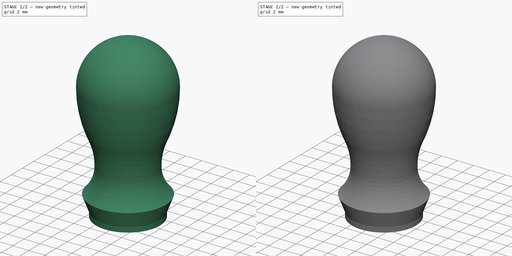
[diagram: build sequence overview — one tinted view per stage of 2, left to right]
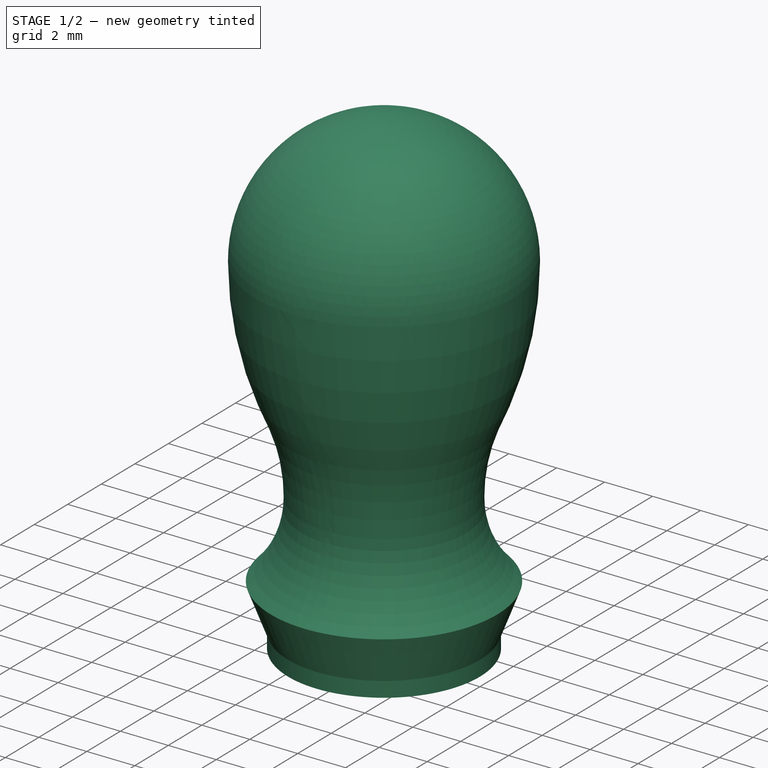
[diagram: stage 1 of 2 — iso view after this stage's code; geometry added in this stage tinted green]
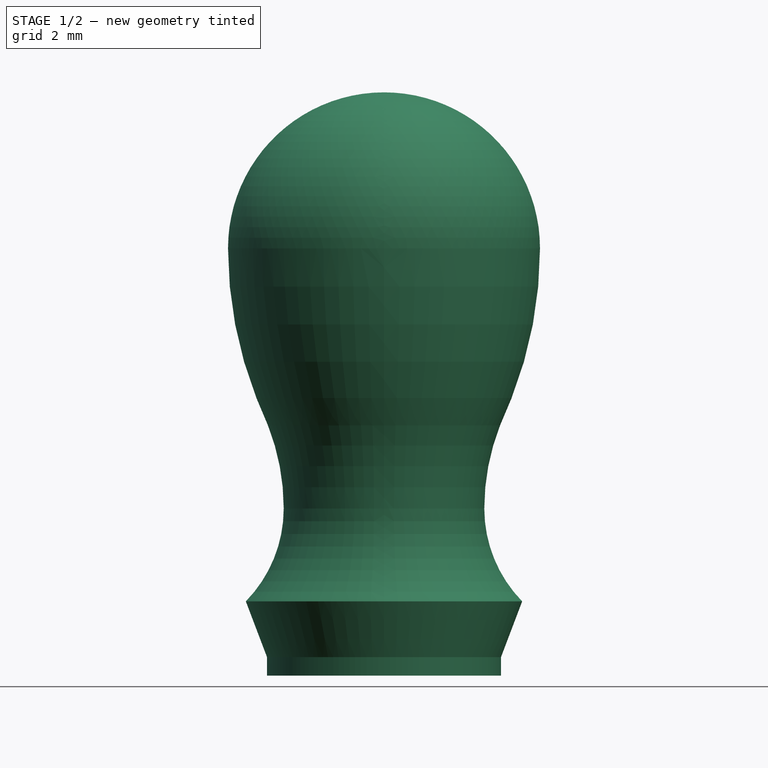
[diagram: stage 1 of 2 — front view after this stage's code; geometry added in this stage tinted green]
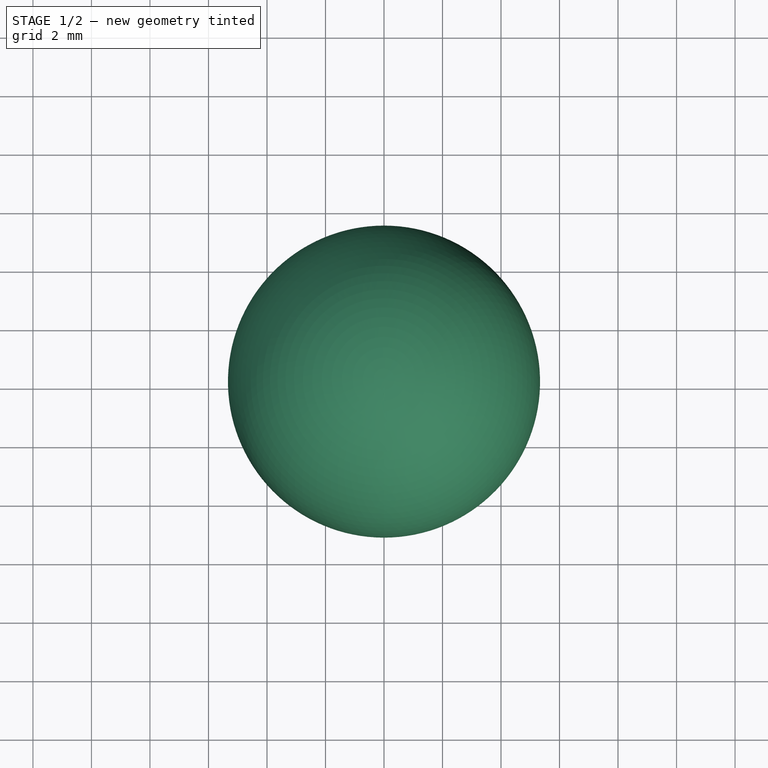
[diagram: stage 1 of 2 — top view after this stage's code; geometry added in this stage tinted green]
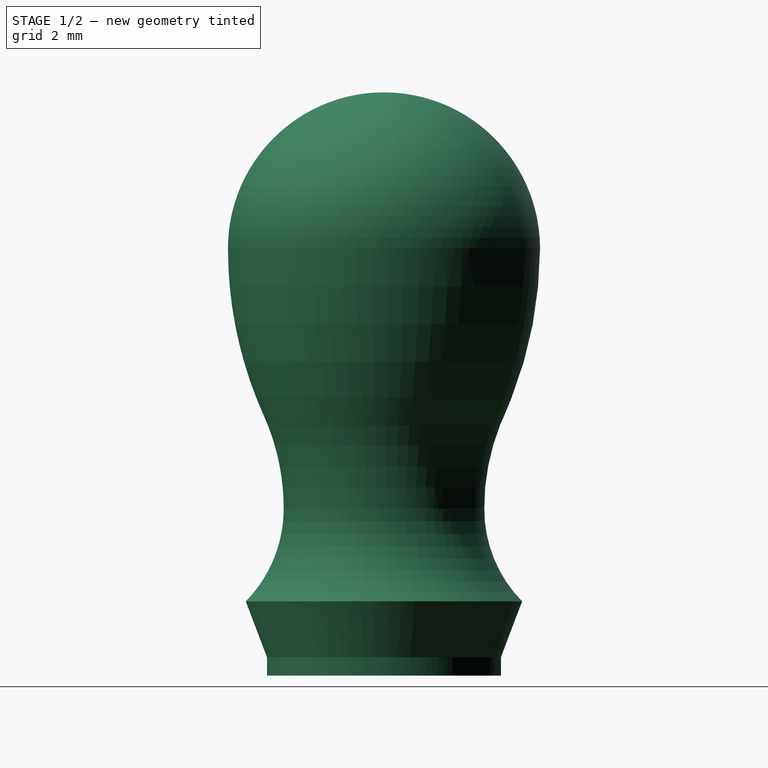
[diagram: stage 1 of 2 — right view after this stage's code; geometry added in this stage tinted green]
FCSTD DOCUMENT  (FreeCAD 0.20R)
Label: J-38 shorting knob with tap hole
License: All rights reserved
LicenseURL: http://en.wikipedia.org/wiki/All_rights_reserved
objects: Sketcher::SketchObject×2, PartDesign::Revolution×1, PartDesign::Pocket×1, PartDesign::Fillet×1, PartDesign::Body×1
note: 9 computed .brp shape members not serialized (recipe doc carries the construction recipe); baked Part::Feature solids carry a one-line shape summary decoded from their .brp

FEATURE [Sketcher::SketchObject] Sketch
  FullyConstrained = true
  MapMode = 5
  Placement = pos=(0,0,0) rot=(0.57735,0.57735,0.57735;2.0944rad)
  Support = -> [YZ_Plane]
  expr: Constraints[11] = 0.1 * 25.4
  expr: Constraints[15] = 0.42 * 25.4
  expr: Constraints[16] = 0.575 * 25.4
  expr: Constraints[18] = 0.225 * 25.4
  expr: Constraints[19] = 0.27 * 25.4
  expr: Constraints[21] = 0.372 * 25.4
  expr: Constraints[2] = 25.4 * 0.315
  expr: Constraints[6] = 0.025 * 25.4
  sketch-geometry (19):
    g0: LineSegment StartX=-4.0005 StartY=0 StartZ=0 EndX=-4.0005 EndY=0.635 EndZ=0
    g1: LineSegment StartX=4.0005 StartY=0 StartZ=0 EndX=4.0005 EndY=0.635 EndZ=0
    g2: LineSegment StartX=-4.0005 StartY=0.635 StartZ=0 EndX=-4.7244 EndY=2.54 EndZ=0
    g3: LineSegment StartX=4.0005 StartY=0.635 StartZ=0 EndX=4.7244 EndY=2.54 EndZ=0
    g4: LineSegment StartX=-5.334 StartY=0 StartZ=0 EndX=-5.334 EndY=14.605 EndZ=0
    g5: LineSegment StartX=5.334 StartY=0 StartZ=0 EndX=5.334 EndY=14.605 EndZ=0
    g6: LineSegment StartX=-3.429 StartY=5.715 StartZ=0 EndX=-3.429 EndY=0 EndZ=0
    g7: LineSegment StartX=3.429 StartY=0 StartZ=0 EndX=3.429 EndY=5.715 EndZ=0
    g8: ArcOfCircle CenterX=-7.96763 CenterY=5.715 CenterZ=0 NormalX=0 NormalY=0 NormalZ=1 AngleXU=0 Radius=4.53863 StartAngle=5.50842 EndAngle=6.28319
    g9: ArcOfCircle CenterX=7.96763 CenterY=5.715 CenterZ=0 NormalX=0 NormalY=0 NormalZ=1 AngleXU=0 Radius=4.53863 StartAngle=3.14159 EndAngle=3.91636
    g10: ArcOfCircle CenterX=-11.1775 CenterY=5.715 CenterZ=0 NormalX=0 NormalY=0 NormalZ=1 AngleXU=0 Radius=7.74851 StartAngle=1e-16 EndAngle=0.422187
    g11: ArcOfCircle CenterX=8.61332 CenterY=14.605 CenterZ=0 NormalX=0 NormalY=0 NormalZ=1 AngleXU=0 Radius=13.9473 StartAngle=3.14159 EndAngle=3.56378
    g12: ArcOfCircle CenterX=11.1775 CenterY=5.715 CenterZ=0 NormalX=0 NormalY=0 NormalZ=1 AngleXU=0 Radius=7.74851 StartAngle=2.71941 EndAngle=3.14159
    g13: ArcOfCircle CenterX=-8.61332 CenterY=14.605 CenterZ=0 NormalX=0 NormalY=0 NormalZ=1 AngleXU=0 Radius=13.9473 StartAngle=5.861 EndAngle=6.28319
    g14: ArcOfCircle CenterX=-8e-16 CenterY=14.605 CenterZ=0 NormalX=0 NormalY=0 NormalZ=1 AngleXU=0 Radius=5.334 StartAngle=0 EndAngle=1.5708
    g15: ArcOfCircle CenterX=-8e-16 CenterY=14.605 CenterZ=0 NormalX=0 NormalY=0 NormalZ=1 AngleXU=0 Radius=5.334 StartAngle=1.5708 EndAngle=3.14159
    g16: LineSegment StartX=-4.0005 StartY=0 StartZ=0 EndX=0 EndY=0 EndZ=0
    g17: LineSegment StartX=0 StartY=0 StartZ=0 EndX=4.0005 EndY=0 EndZ=0
    g18: LineSegment StartX=-5e-16 StartY=19.939 StartZ=0 EndX=0 EndY=0 EndZ=0
  constraints (46):
    c: PointOnObject(g16,g-1)
    c: Symmetric(g16,g17,g-2)
    c: DistanceX(g16,g17) = 8.001
    c: Coincident(g0,g16)
    c: Vertical(g0)
    c: Coincident(g1,g17)
    c: DistanceY(g0,g0) = 0.635
    c: Symmetric(g0,g1,g-2)
    c: Coincident(g2,g0)
    c: Coincident(g3,g1)
    c: Symmetric(g2,g3,g-2)
    c: DistanceY(g-1,g2) = 2.54
    c: PointOnObject(g4,g-1)
    c: Vertical(g4)
    c: PointOnObject(g5,g-1)
    c: DistanceX(g4,g5) = 10.668
    c: DistanceY(g4,g4) = 14.605
    c: Vertical(g6)
    c: DistanceY(g6,g6) = 5.715
    c: DistanceX(g6,g7) = 6.858
    c: Symmetric(g5,g4,g-2)
    c: DistanceX(g2,g3) = 9.4488
    c: Symmetric(g15,g14,g-2)
    c: Tangent(g8,g6) = 1.5708
    c: Coincident(g8,g2)
    c: Symmetric(g6,g7,g-2)
    c: Vertical(g5)
    c: Tangent(g15,g4) = 1.5708
    c: Coincident(g9,g3)
    c: Tangent(g9,g7) = 1.5708
    c: Tangent(g11,g15) = -1.5708
    c: Tangent(g11,g10) = 1.5708
    c: Tangent(g10,g8) = -1.5708
    c: Tangent(g13,g14) = -1.5708
    c: Tangent(g13,g12) = 1.5708
    c: Tangent(g12,g9) = -1.5708
    c: Symmetric(g12,g10,g-2)
    c: DistanceY(g-1,g12) = 8.89
    c: PointOnObject(g14,g-2)
    c: Coincident(g16,g17)
    c: PointOnObject(g6,g16)
    c: Tangent(g14,g15) = -1.5708
    c: Coincident(g16,g-1)
    c: Symmetric(g8,g7,g-2)
    c: Coincident(g18,g15)
    c: Coincident(g18,g16)
FEATURE [PartDesign::Revolution] Revolution
  Angle = 360
  Axis = (-2e-16,3e-16,1)
  Base = (0,0,0)
  Placement = pos=(0,0,0) rot=(0.57735,0.57735,0.57735;2.0944rad)
  Profile = -> Sketch
  ReferenceAxis = -> Sketch [V_Axis]
FEATURE [Sketcher::SketchObject] Sketch001
  FullyConstrained = true
  MapMode = 5
  Placement = pos=(0,0,7e-16) rot=(0.707107,0.707107,0;3.14159rad)
  Support = -> [Revolution]
  expr: Constraints[1] = 25.4 * 0.136
  sketch-geometry (1):
    g0: Circle CenterX=0 CenterY=0 CenterZ=0 NormalX=0 NormalY=0 NormalZ=1 AngleXU=0 Radius=1.7272
  constraints (2):
    c: Coincident(g0,g-1)
    c: Diameter(g0) = 3.4544
FEATURE [PartDesign::Pocket] Pocket
  BaseFeature = -> Revolution
  Direction = (-6e-16,4e-16,1)
  Length = 12.7
  Length2 = 5
  Placement = pos=(0,0,0) rot=(0.57735,0.57735,0.57735;2.0944rad)
  Profile = -> Sketch001
  ReferenceAxis = -> Sketch001 [N_Axis]
  Type = 0
  expr: Length = 0.5 * 25.4
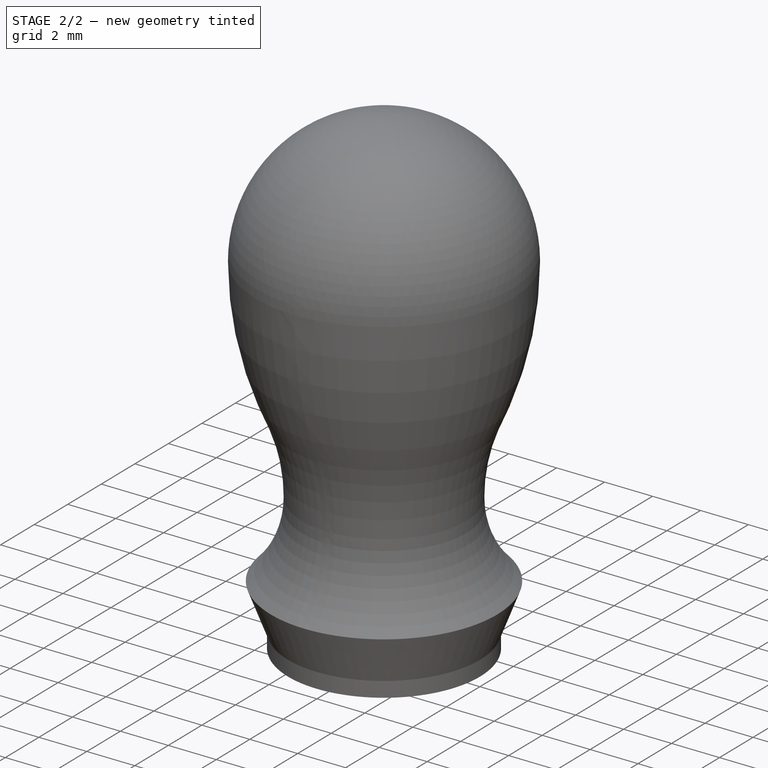
[diagram: stage 2 of 2 — iso view after this stage's code; geometry added in this stage tinted green]
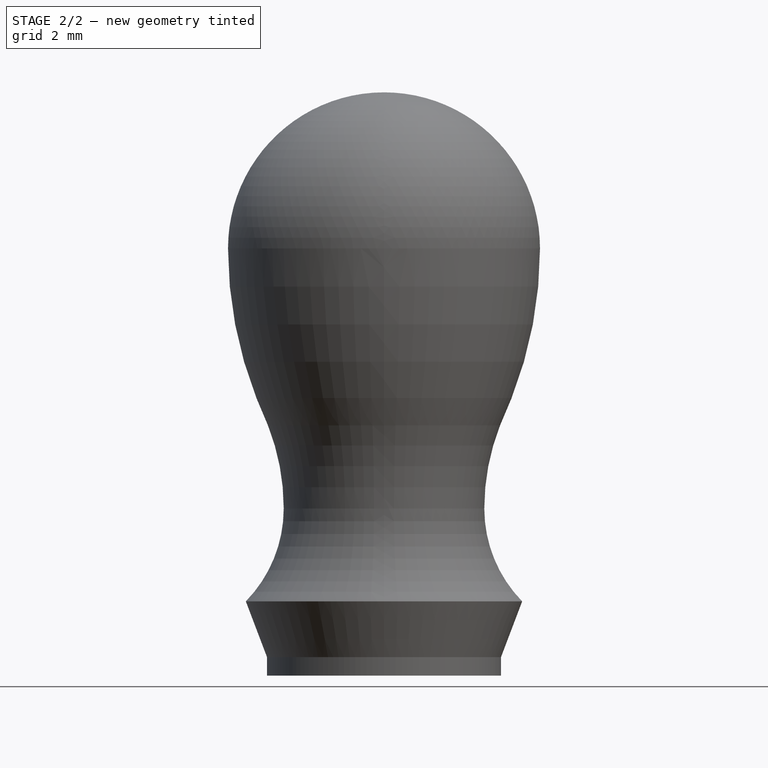
[diagram: stage 2 of 2 — front view after this stage's code; geometry added in this stage tinted green]
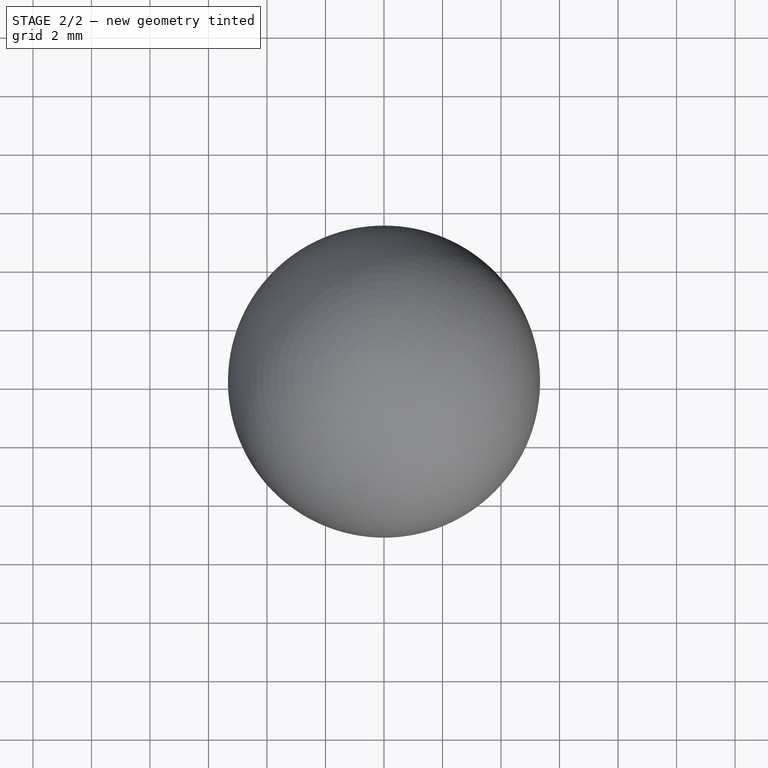
[diagram: stage 2 of 2 — top view after this stage's code; geometry added in this stage tinted green]
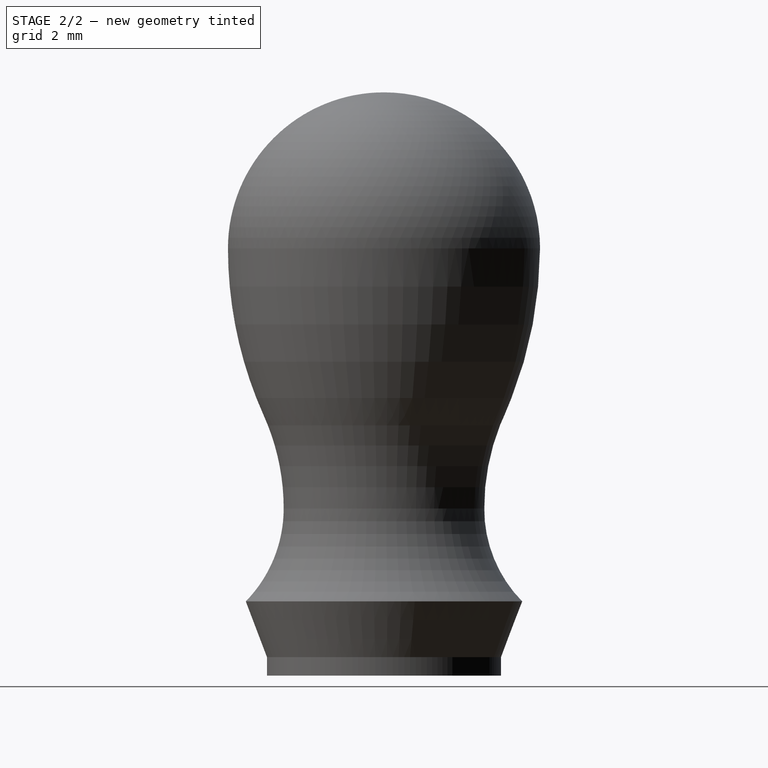
[diagram: stage 2 of 2 — right view after this stage's code; geometry added in this stage tinted green]
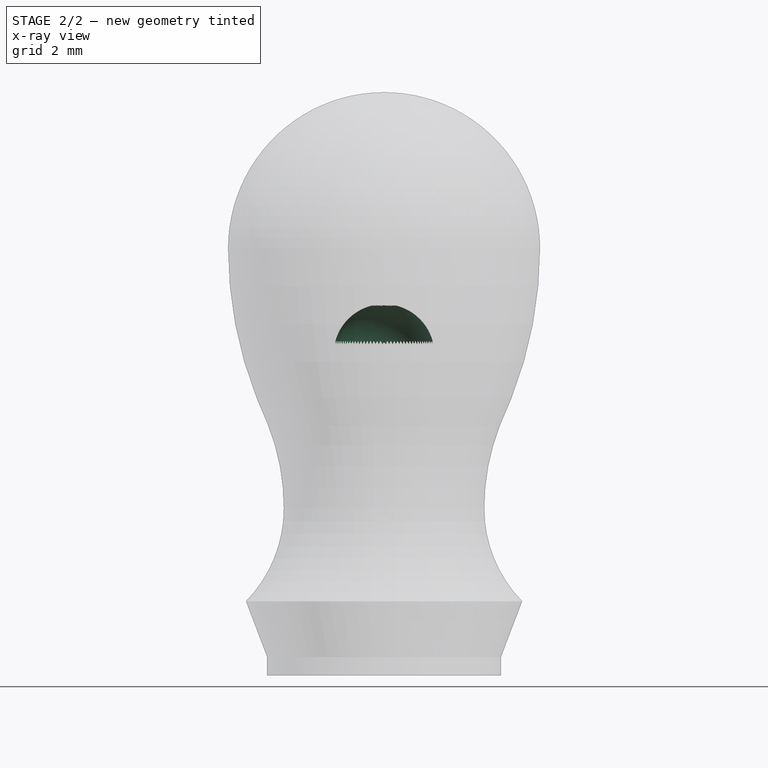
[diagram: stage 2 of 2 — x-ray composite at the front view; earlier geometry ghosted, this stage's added geometry solid]
FEATURE [PartDesign::Fillet] Fillet
  Base = -> Pocket [Face6]
  BaseFeature = -> Pocket
  Placement = pos=(0,0,0) rot=(0.57735,0.57735,0.57735;2.0944rad)
  Radius = 1.7272
  SupportTransform = false
  UseAllEdges = false
FEATURE [PartDesign::Body] Body
  Group = -> [Sketch,Revolution,Sketch001,Pocket,Fillet]
  Origin = -> Origin
  Tip = -> Fillet
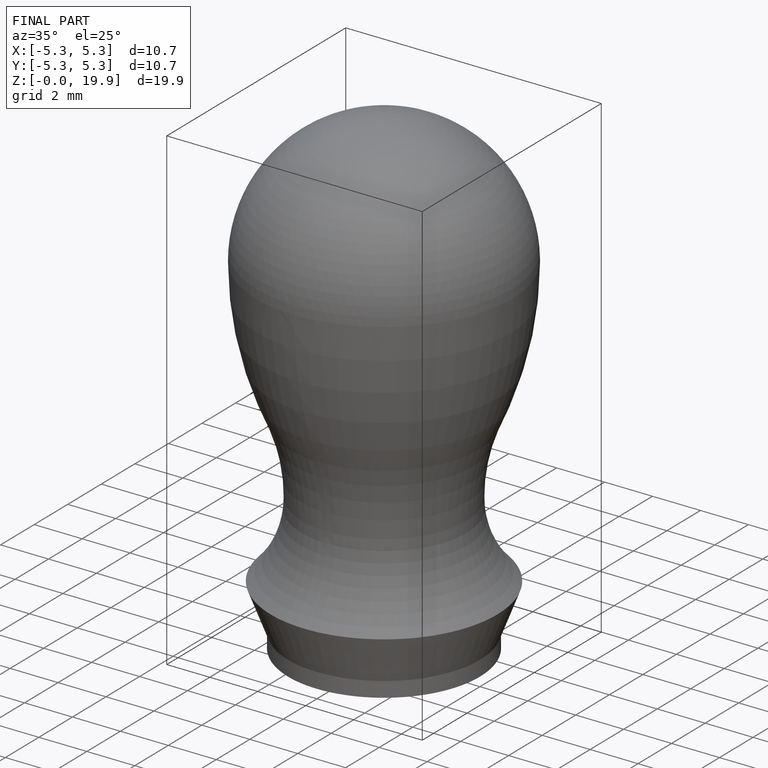
[diagram: finished part — iso view with bounding-box wireframe]
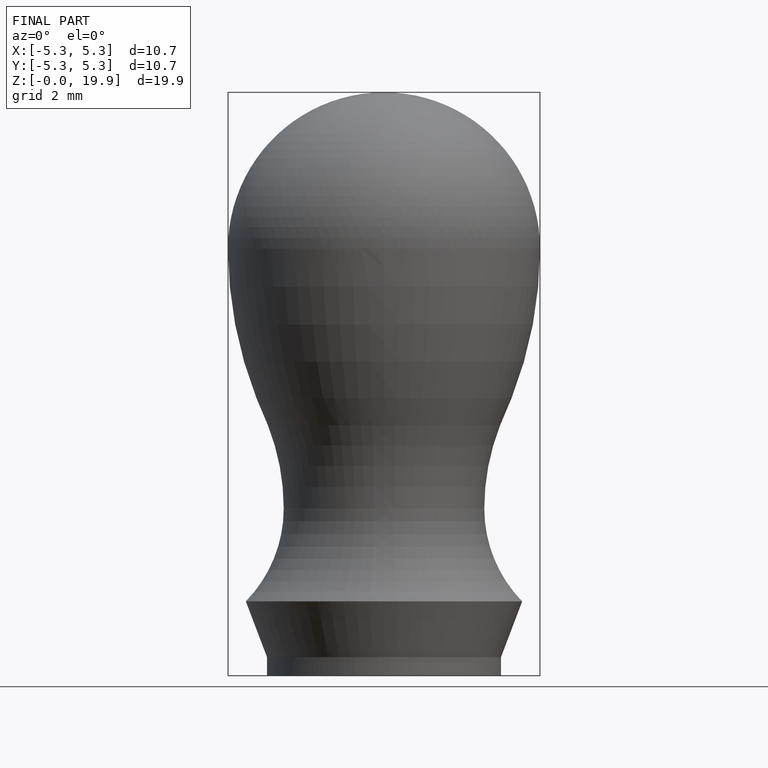
[diagram: finished part — front view with bounding-box wireframe]
